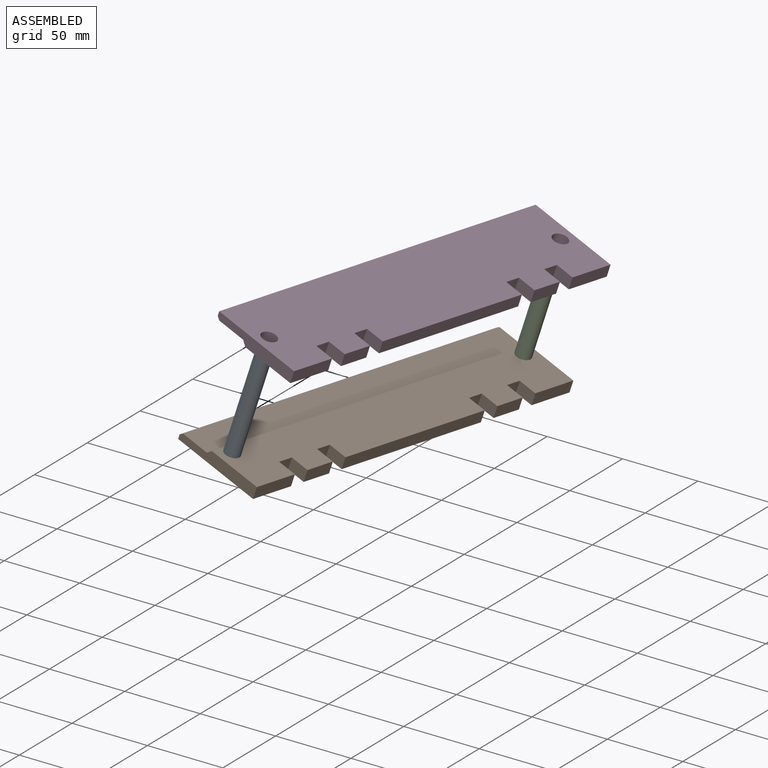
[diagram: assembled view]
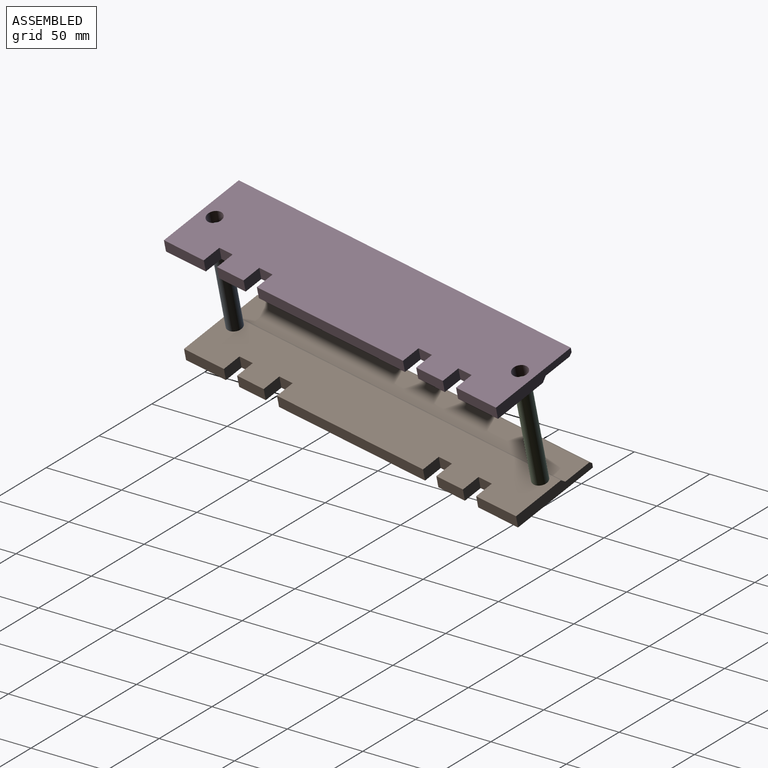
[diagram: assembled view, second angle]
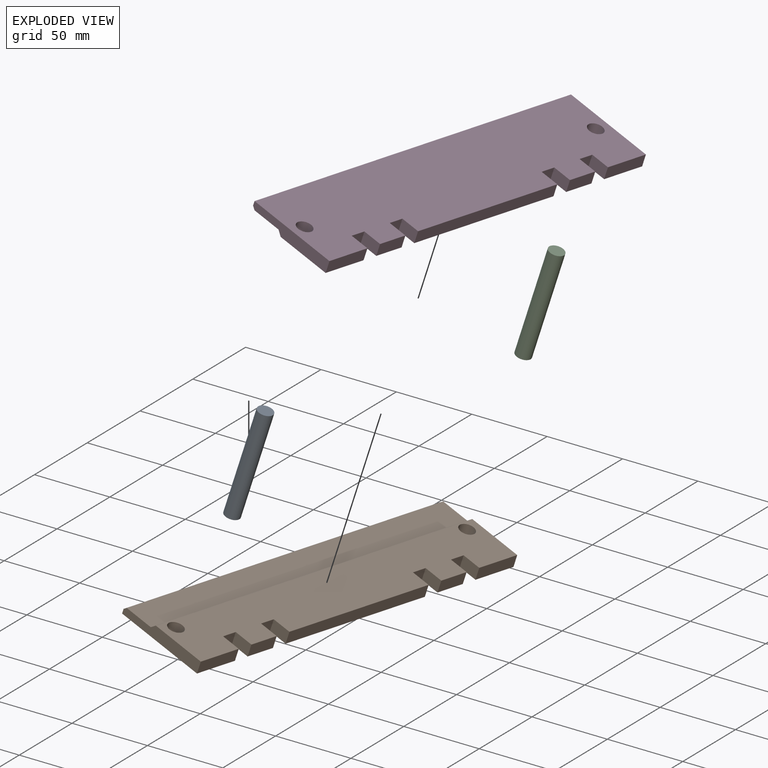
[diagram: exploded view]
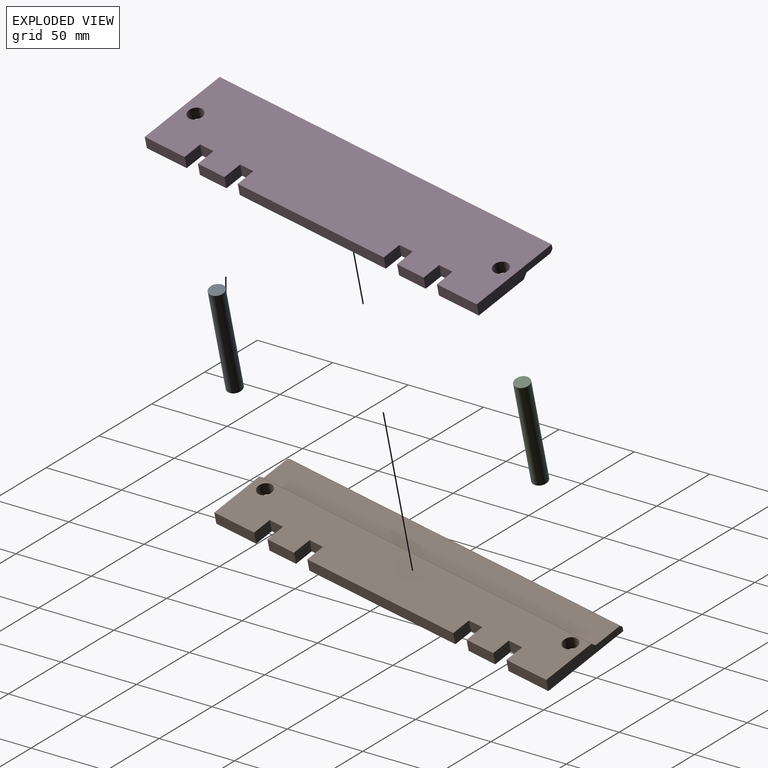
[diagram: exploded view, second angle]
ASSEMBLY  parts=4 mates=3
PART A: 3 faces, bbox 10x70x10 mm
  f0: cylinder r=5mm len=70mm, axis (0,1,0), area 2199.1mm2, adj f1,f2
  f1: plane 10x10mm, normal (0,-1,0), area 78.5mm2, adj f0
  f2: plane 10x10mm, normal (0,1,0), area 78.5mm2, adj f0
PART B: 27 faces, bbox 250x8x60 mm
  f0: plane 250x3.11mm, normal (0,0,-1), area 777.7mm2, adj f2,f3,f21,f26
  f1: plane 30x8mm, normal (0,0,1), area 240mm2, adj f2,f19,f20,f21
  f2: plane 60x8mm, normal (-1,0,0), area 409.9mm2, adj f0,f1,f20,f21,f24,f25,f26
  f3: plane 60x8mm, normal (1,0,0), area 409.9mm2, adj f0,f4,f20,f21,f24,f25,f26
  f4: plane 30x8mm, normal (0,0,1), area 240mm2, adj f3,f5,f20,f21
  f5: plane 12.54x8mm, normal (-1,0,0), area 100.3mm2, adj f4,f6,f20,f21
  f6: plane 10x8mm, normal (0,0,1), area 80mm2, adj f5,f7,f20,f21
  f7: plane 12.54x8mm, normal (1,0,0), area 100.3mm2, adj f6,f8,f20,f21
  f8: plane 20x8mm, normal (0,0,1), area 160mm2, adj f7,f9,f20,f21
  f9: plane 12.54x8mm, normal (-1,0,0), area 100.3mm2, adj f8,f10,f20,f21
  f10: plane 10x8mm, normal (0,0,1), area 80mm2, adj f9,f11,f20,f21
  f11: plane 12.54x8mm, normal (1,0,0), area 100.3mm2, adj f10,f12,f20,f21
  f12: plane 110x8mm, normal (0,0,1), area 880mm2, adj f11,f13,f20,f21
  f13: plane 12.54x8mm, normal (-1,0,0), area 100.3mm2, adj f12,f14,f20,f21
  f14: plane 10x8mm, normal (0,0,1), area 80mm2, adj f13,f15,f20,f21
  f15: plane 12.54x8mm, normal (1,0,0), area 100.3mm2, adj f14,f16,f20,f21
  f16: plane 20x8mm, normal (0,0,1), area 160mm2, adj f15,f17,f20,f21
  f17: plane 12.54x8mm, normal (-1,0,0), area 100.3mm2, adj f16,f18,f20,f21
  f18: plane 10x8mm, normal (0,0,1), area 80mm2, adj f17,f19,f20,f21
  f19: plane 12.54x8mm, normal (1,0,0), area 100.3mm2, adj f1,f18,f20,f21
  f20: plane 250x36.01mm, normal (0,-1,0), area 8344.2mm2, adj f1,f2,f3,f4,f5,f6,f7,f8
  f21: plane 250x60mm, normal (0,1,0), area 14341.3mm2, adj f0,f1,f2,f3,f4,f5,f6,f7
  f22: cylinder r=5mm len=10mm, axis (0,-1,0), area 251.3mm2, adj f20,f21
  f23: cylinder r=5mm len=10mm, axis (0,-1,0), area 251.3mm2, adj f20,f21
  f24: plane 250x3.03mm, normal (0,-0.69,-0.72), area 1048.6mm2, adj f2,f3,f20,f25
  f25: plane 250x19.17mm, normal (0,-1,0), area 4792.2mm2, adj f2,f3,f24,f26
  f26: plane 250x1.92mm, normal (0,-0.72,-0.7), area 668.1mm2, adj f0,f2,f3,f25
PART C: same geometry as A
PART D: same geometry as B
PLACE A rot(axis=(-0.58,0.64,-0.51),137.2deg) t=(-90.55,-233.28,-20.68)mm
PLACE B rot(axis=(-0.58,0.64,-0.51),137.2deg) t=(-77.61,-116.6,-37.16)mm
PLACE C rot(axis=(-0.58,0.64,-0.51),137.2deg) t=(-56.15,-6.63,-39.27)mm
PLACE D rot(axis=(0.67,0.61,0.41),123.4deg) t=(-53.41,-120.09,45.55)mm
MATE fastened A.f0 <-> B.f22  axis (-0.29,-0.03,-0.96) through (-90.55,-233.28,-20.68)mm
MATE fastened D.f23 <-> A.f0  axis (-0.29,-0.03,-0.96) through (-70.06,-230.9,46.22)mm
MATE fastened C.f0 <-> B.f23  axis (-0.29,-0.03,-0.96) through (-56.15,-6.63,-39.27)mm
